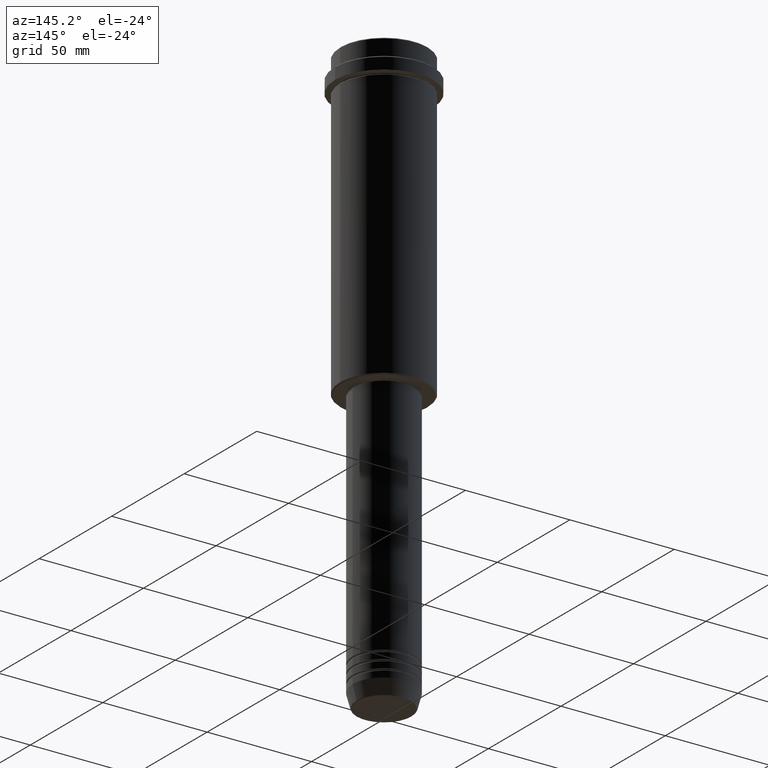
[diagram: clean part render]
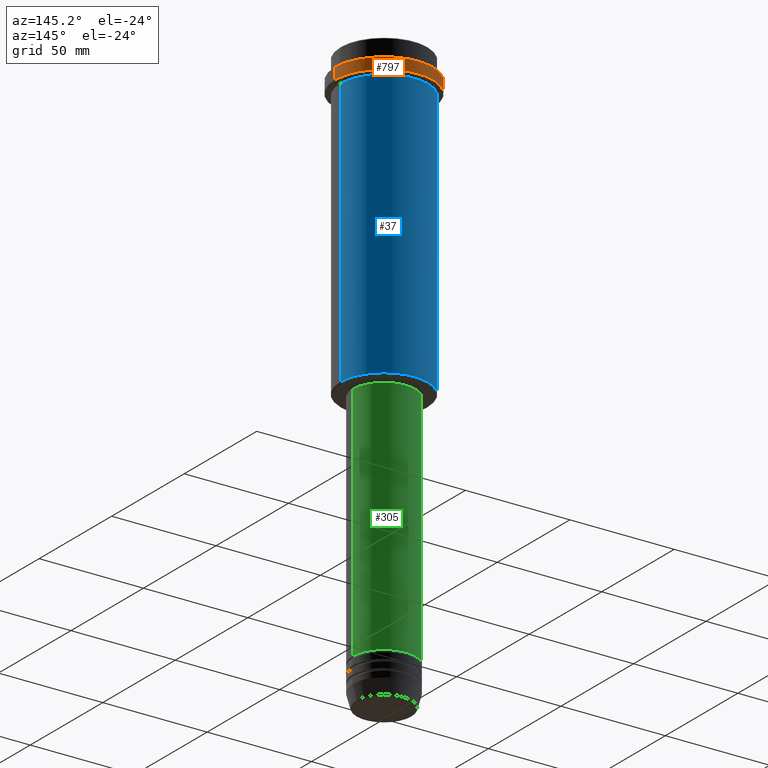
[diagram: same view with three faces highlighted in distinct colors, each labeled with its STEP entity id]
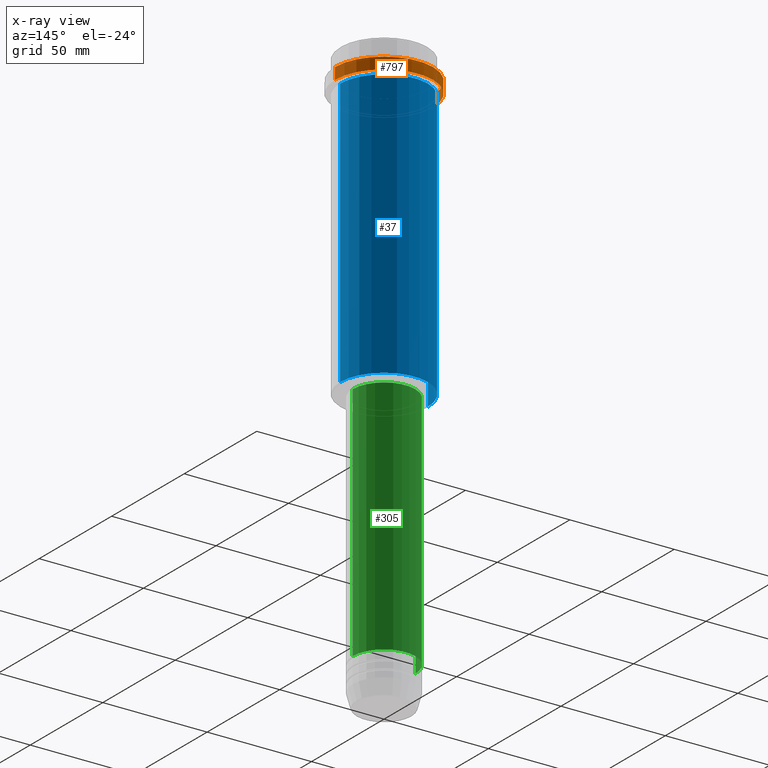
[diagram: x-ray of the same camera — body ghosted, the three highlighted faces saturated]
A machine part, auxiliary view with three faces highlighted in distinct colors.
The next image is the same camera in x-ray (body ghosted, the three faces saturated) — at least one of them is partly hidden behind the body in this view.
Their STEP definitions:

[orange] entity #797 — the highlighted cylindrical surface (partial cylindrical patch) has radius 23.5 mm, axis along (-0, -0, 1).
#46 = FACE_OUTER_BOUND ( 'NONE', #242, .T. ) ;
#111 = CARTESIAN_POINT ( 'NONE',  ( 23.50000000000000000, 0.000000000000000000, 0.000000000000000000 ) ) ;
#131 = ORIENTED_EDGE ( 'NONE', *, *, #962, .T. ) ;
#139 = AXIS2_PLACEMENT_3D ( 'NONE', #794, #479, #1129 ) ;
#191 = CIRCLE ( 'NONE', #629, 23.50000000000000355 ) ;
#216 = CARTESIAN_POINT ( 'NONE',  ( 23.50000000000000355, 0.000000000000000000, -15.00000000000000178 ) ) ;
#242 = EDGE_LOOP ( 'NONE', ( #925, #270, #131, #1177 ) ) ;
#270 = ORIENTED_EDGE ( 'NONE', *, *, #564, .T. ) ;
#323 = LINE ( 'NONE', #111, #671 ) ;
#329 = CARTESIAN_POINT ( 'NONE',  ( 23.50000000000000000, 0.000000000000000000, -9.499999999999973355 ) ) ;
#372 = CYLINDRICAL_SURFACE ( 'NONE', #139, 23.50000000000000000 ) ;
#414 = VERTEX_POINT ( 'NONE', #844 ) ;
#479 = DIRECTION ( 'NONE',  ( -0.000000000000000000, -0.000000000000000000, 1.000000000000000000 ) ) ;
#483 = VERTEX_POINT ( 'NONE', #1395 ) ;
#498 = DIRECTION ( 'NONE',  ( 1.000000000000000000, 0.000000000000000000, 0.000000000000000000 ) ) ;
#564 = EDGE_CURVE ( 'NONE', #414, #483, #1270, .T. ) ;
#629 = AXIS2_PLACEMENT_3D ( 'NONE', #1039, #725, #498 ) ;
#635 = EDGE_CURVE ( 'NONE', #645, #989, #323, .T. ) ;
#645 = VERTEX_POINT ( 'NONE', #216 ) ;
#671 = VECTOR ( 'NONE', #1308, 1000.000000000000000 ) ;
#673 = CIRCLE ( 'NONE', #1151, 23.50000000000000000 ) ;
#725 = DIRECTION ( 'NONE',  ( -0.000000000000000000, -0.000000000000000000, 1.000000000000000000 ) ) ;
#794 = CARTESIAN_POINT ( 'NONE',  ( 0.000000000000000000, 0.000000000000000000, 0.000000000000000000 ) ) ;
#797 = ADVANCED_FACE ( 'NONE', ( #46 ), #372, .T. ) ;
#806 = VECTOR ( 'NONE', #1321, 1000.000000000000000 ) ;
#844 = CARTESIAN_POINT ( 'NONE',  ( -23.50000000000000711, 2.877919977996281109E-15, -15.00000000000000178 ) ) ;
#925 = ORIENTED_EDGE ( 'NONE', *, *, #1231, .T. ) ;
#962 = EDGE_CURVE ( 'NONE', #483, #989, #673, .T. ) ;
#963 = DIRECTION ( 'NONE',  ( 0.000000000000000000, 0.000000000000000000, -1.000000000000000000 ) ) ;
#989 = VERTEX_POINT ( 'NONE', #329 ) ;
#1039 = CARTESIAN_POINT ( 'NONE',  ( 0.000000000000000000, 0.000000000000000000, -15.00000000000000178 ) ) ;
#1047 = DIRECTION ( 'NONE',  ( 1.000000000000000000, 0.000000000000000000, 0.000000000000000000 ) ) ;
#1129 = DIRECTION ( 'NONE',  ( 1.000000000000000000, 0.000000000000000000, 0.000000000000000000 ) ) ;
#1151 = AXIS2_PLACEMENT_3D ( 'NONE', #1398, #963, #1047 ) ;
#1177 = ORIENTED_EDGE ( 'NONE', *, *, #635, .F. ) ;
#1231 = EDGE_CURVE ( 'NONE', #645, #414, #191, .T. ) ;
#1270 = LINE ( 'NONE', #1382, #806 ) ;
#1308 = DIRECTION ( 'NONE',  ( -0.000000000000000000, -0.000000000000000000, 1.000000000000000000 ) ) ;
#1321 = DIRECTION ( 'NONE',  ( -0.000000000000000000, -0.000000000000000000, 1.000000000000000000 ) ) ;
#1382 = CARTESIAN_POINT ( 'NONE',  ( -23.50000000000000000, 2.877919977996280320E-15, 0.000000000000000000 ) ) ;
#1395 = CARTESIAN_POINT ( 'NONE',  ( -23.50000000000000000, 2.877919977996280320E-15, -9.499999999999973355 ) ) ;
#1398 = CARTESIAN_POINT ( 'NONE',  ( 0.000000000000000000, 0.000000000000000000, -9.499999999999973355 ) ) ;

[blue] entity #37 — the highlighted cylindrical surface (partial cylindrical patch) has radius 21 mm, axis along (-0, -0, 1).
#35 = CIRCLE ( 'NONE', #539, 20.99999999999999645 ) ;
#37 = ADVANCED_FACE ( 'NONE', ( #598 ), #406, .T. ) ;
#70 = VECTOR ( 'NONE', #913, 1000.000000000000000 ) ;
#81 = ORIENTED_EDGE ( 'NONE', *, *, #1204, .F. ) ;
#96 = EDGE_LOOP ( 'NONE', ( #1383, #1305, #81, #1163 ) ) ;
#122 = EDGE_CURVE ( 'NONE', #506, #557, #824, .T. ) ;
#147 = DIRECTION ( 'NONE',  ( 1.000000000000000000, 0.000000000000000000, 0.000000000000000000 ) ) ;
#148 = DIRECTION ( 'NONE',  ( -0.000000000000000000, -0.000000000000000000, 1.000000000000000000 ) ) ;
#217 = CARTESIAN_POINT ( 'NONE',  ( -20.99999999999999645, 2.571758278209441267E-15, -16.00000000000000355 ) ) ;
#222 = DIRECTION ( 'NONE',  ( -0.000000000000000000, -0.000000000000000000, 1.000000000000000000 ) ) ;
#258 = VERTEX_POINT ( 'NONE', #217 ) ;
#340 = LINE ( 'NONE', #548, #740 ) ;
#406 = CYLINDRICAL_SURFACE ( 'NONE', #577, 20.99999999999999645 ) ;
#491 = AXIS2_PLACEMENT_3D ( 'NONE', #1144, #148, #837 ) ;
#506 = VERTEX_POINT ( 'NONE', #849 ) ;
#539 = AXIS2_PLACEMENT_3D ( 'NONE', #832, #1037, #716 ) ;
#548 = CARTESIAN_POINT ( 'NONE',  ( -20.99999999999999645, 2.571758278209441267E-15, 0.000000000000000000 ) ) ;
#557 = VERTEX_POINT ( 'NONE', #944 ) ;
#577 = AXIS2_PLACEMENT_3D ( 'NONE', #612, #710, #147 ) ;
#598 = FACE_OUTER_BOUND ( 'NONE', #96, .T. ) ;
#612 = CARTESIAN_POINT ( 'NONE',  ( 0.000000000000000000, 0.000000000000000000, 0.000000000000000000 ) ) ;
#710 = DIRECTION ( 'NONE',  ( -0.000000000000000000, -0.000000000000000000, 1.000000000000000000 ) ) ;
#716 = DIRECTION ( 'NONE',  ( -1.000000000000000000, 0.000000000000000000, 0.000000000000000000 ) ) ;
#740 = VECTOR ( 'NONE', #222, 1000.000000000000000 ) ;
#807 = VERTEX_POINT ( 'NONE', #1236 ) ;
#824 = LINE ( 'NONE', #1021, #70 ) ;
#832 = CARTESIAN_POINT ( 'NONE',  ( 0.000000000000000000, 0.000000000000000000, -144.5000000000000568 ) ) ;
#837 = DIRECTION ( 'NONE',  ( 1.000000000000000000, 0.000000000000000000, 0.000000000000000000 ) ) ;
#849 = CARTESIAN_POINT ( 'NONE',  ( 20.99999999999999645, 0.000000000000000000, -144.5000000000000568 ) ) ;
#898 = CIRCLE ( 'NONE', #491, 20.99999999999999645 ) ;
#913 = DIRECTION ( 'NONE',  ( -0.000000000000000000, -0.000000000000000000, 1.000000000000000000 ) ) ;
#944 = CARTESIAN_POINT ( 'NONE',  ( 20.99999999999999645, 0.000000000000000000, -16.00000000000000355 ) ) ;
#1021 = CARTESIAN_POINT ( 'NONE',  ( 20.99999999999999645, 0.000000000000000000, 0.000000000000000000 ) ) ;
#1037 = DIRECTION ( 'NONE',  ( -0.000000000000000000, -0.000000000000000000, 1.000000000000000000 ) ) ;
#1110 = EDGE_CURVE ( 'NONE', #807, #258, #340, .T. ) ;
#1144 = CARTESIAN_POINT ( 'NONE',  ( 0.000000000000000000, 0.000000000000000000, -16.00000000000000355 ) ) ;
#1163 = ORIENTED_EDGE ( 'NONE', *, *, #122, .F. ) ;
#1204 = EDGE_CURVE ( 'NONE', #557, #258, #898, .T. ) ;
#1236 = CARTESIAN_POINT ( 'NONE',  ( -20.99999999999999645, 2.571758278209441267E-15, -144.5000000000000568 ) ) ;
#1305 = ORIENTED_EDGE ( 'NONE', *, *, #1110, .T. ) ;
#1345 = EDGE_CURVE ( 'NONE', #506, #807, #35, .T. ) ;
#1383 = ORIENTED_EDGE ( 'NONE', *, *, #1345, .T. ) ;

[green] entity #305 — the highlighted cylindrical surface (partial cylindrical patch) has radius 15 mm, axis along (-0, -0, 1).
#3 = LINE ( 'NONE', #240, #1309 ) ;
#12 = DIRECTION ( 'NONE',  ( -0.000000000000000000, -0.000000000000000000, 1.000000000000000000 ) ) ;
#14 = CIRCLE ( 'NONE', #380, 15.00000000000000000 ) ;
#55 = CIRCLE ( 'NONE', #741, 15.00000000000000000 ) ;
#71 = CARTESIAN_POINT ( 'NONE',  ( 0.000000000000000000, 0.000000000000000000, -146.0000000000000284 ) ) ;
#82 = CARTESIAN_POINT ( 'NONE',  ( -15.00000000000000000, 1.836970198721029589E-15, -146.0000000000000284 ) ) ;
#104 = VERTEX_POINT ( 'NONE', #1049 ) ;
#108 = LINE ( 'NONE', #758, #1145 ) ;
#127 = DIRECTION ( 'NONE',  ( -0.000000000000000000, -0.000000000000000000, 1.000000000000000000 ) ) ;
#149 = ORIENTED_EDGE ( 'NONE', *, *, #156, .F. ) ;
#156 = EDGE_CURVE ( 'NONE', #104, #887, #108, .T. ) ;
#209 = DIRECTION ( 'NONE',  ( -0.000000000000000000, -0.000000000000000000, 1.000000000000000000 ) ) ;
#235 = ORIENTED_EDGE ( 'NONE', *, *, #1223, .F. ) ;
#240 = CARTESIAN_POINT ( 'NONE',  ( -15.00000000000000000, 1.836970198721029589E-15, 0.000000000000000000 ) ) ;
#275 = EDGE_LOOP ( 'NONE', ( #1149, #579, #235, #149 ) ) ;
#305 = ADVANCED_FACE ( 'NONE', ( #460 ), #334, .T. ) ;
#334 = CYLINDRICAL_SURFACE ( 'NONE', #736, 15.00000000000000000 ) ;
#380 = AXIS2_PLACEMENT_3D ( 'NONE', #71, #607, #492 ) ;
#387 = CARTESIAN_POINT ( 'NONE',  ( -15.00000000000000000, 1.836970198721029589E-15, -260.9999999999998863 ) ) ;
#460 = FACE_OUTER_BOUND ( 'NONE', #275, .T. ) ;
#492 = DIRECTION ( 'NONE',  ( 1.000000000000000000, 0.000000000000000000, 0.000000000000000000 ) ) ;
#579 = ORIENTED_EDGE ( 'NONE', *, *, #667, .T. ) ;
#607 = DIRECTION ( 'NONE',  ( -0.000000000000000000, -0.000000000000000000, 1.000000000000000000 ) ) ;
#620 = CARTESIAN_POINT ( 'NONE',  ( 15.00000000000000000, 0.000000000000000000, -146.0000000000000284 ) ) ;
#667 = EDGE_CURVE ( 'NONE', #1157, #978, #3, .T. ) ;
#736 = AXIS2_PLACEMENT_3D ( 'NONE', #774, #12, #886 ) ;
#741 = AXIS2_PLACEMENT_3D ( 'NONE', #1366, #1142, #935 ) ;
#758 = CARTESIAN_POINT ( 'NONE',  ( 15.00000000000000000, 0.000000000000000000, 0.000000000000000000 ) ) ;
#774 = CARTESIAN_POINT ( 'NONE',  ( 0.000000000000000000, 0.000000000000000000, 0.000000000000000000 ) ) ;
#886 = DIRECTION ( 'NONE',  ( 1.000000000000000000, 0.000000000000000000, 0.000000000000000000 ) ) ;
#887 = VERTEX_POINT ( 'NONE', #620 ) ;
#935 = DIRECTION ( 'NONE',  ( 1.000000000000000000, 0.000000000000000000, 0.000000000000000000 ) ) ;
#978 = VERTEX_POINT ( 'NONE', #82 ) ;
#1049 = CARTESIAN_POINT ( 'NONE',  ( 15.00000000000000000, 0.000000000000000000, -260.9999999999998863 ) ) ;
#1142 = DIRECTION ( 'NONE',  ( -0.000000000000000000, -0.000000000000000000, 1.000000000000000000 ) ) ;
#1145 = VECTOR ( 'NONE', #209, 1000.000000000000000 ) ;
#1149 = ORIENTED_EDGE ( 'NONE', *, *, #1303, .T. ) ;
#1157 = VERTEX_POINT ( 'NONE', #387 ) ;
#1223 = EDGE_CURVE ( 'NONE', #887, #978, #14, .T. ) ;
#1303 = EDGE_CURVE ( 'NONE', #104, #1157, #55, .T. ) ;
#1309 = VECTOR ( 'NONE', #127, 1000.000000000000000 ) ;
#1366 = CARTESIAN_POINT ( 'NONE',  ( 0.000000000000000000, 0.000000000000000000, -260.9999999999998863 ) ) ;